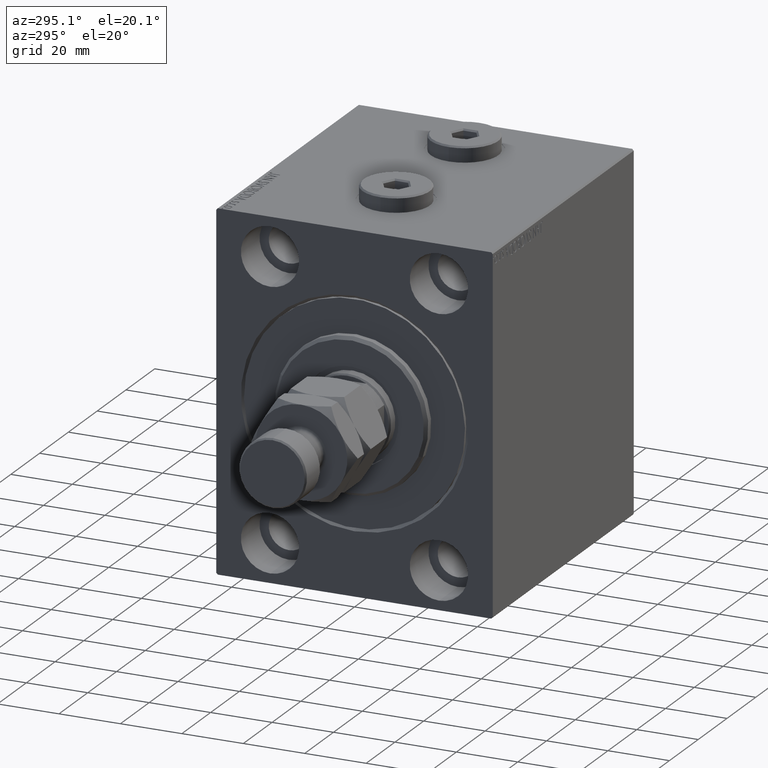
[diagram: clean part render]
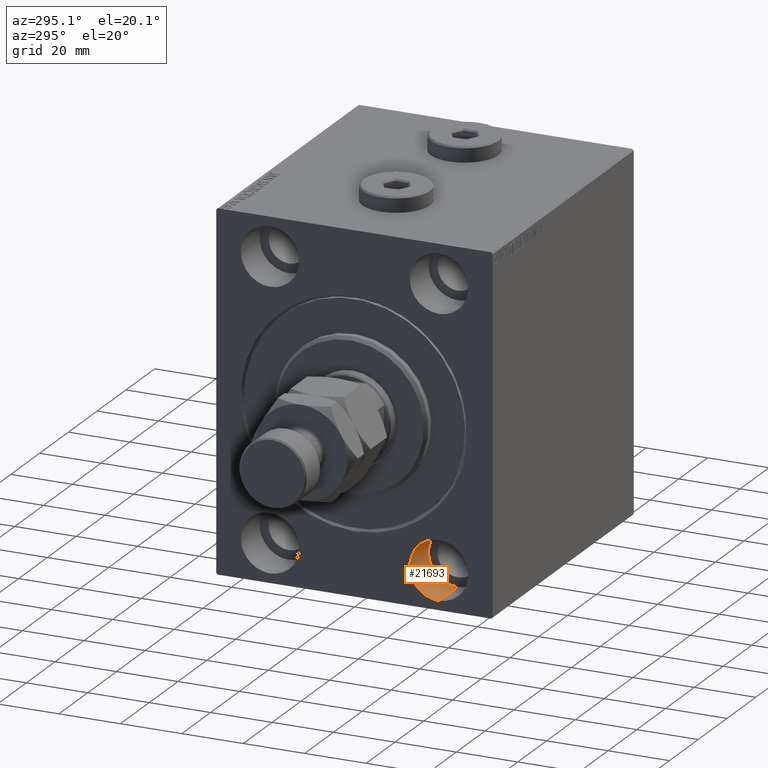
[diagram: same view with one face highlighted and labeled with its STEP entity id]
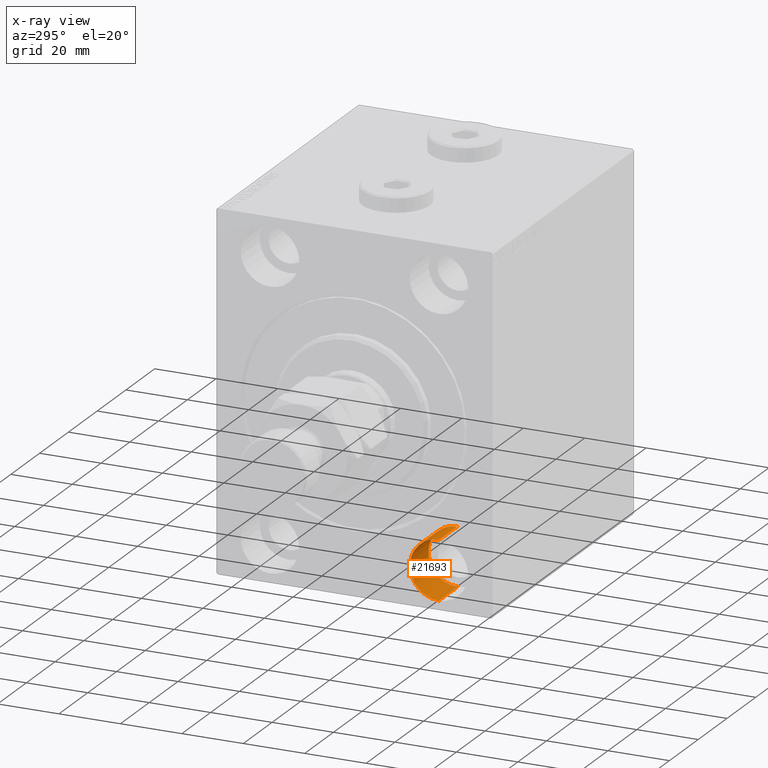
[diagram: x-ray of the same camera — body ghosted, the highlighted face saturated]
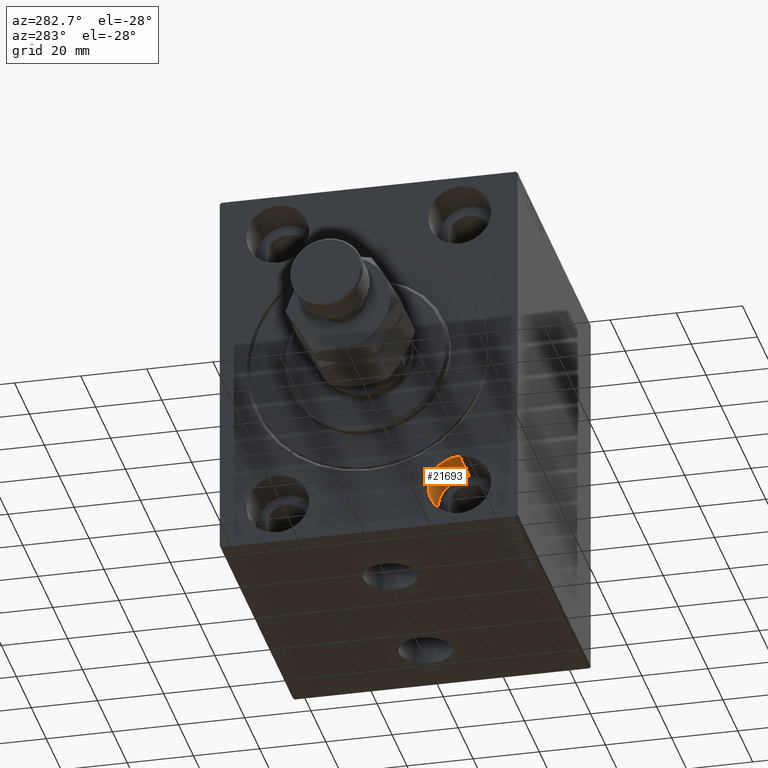
[diagram: same view with one face highlighted and labeled with its STEP entity id]
A machine part, auxiliary view. The second image highlights one B-rep face of the part: STEP entity #21693.
The next image is the same camera in x-ray: the body ghosted, the highlighted face saturated — about 0% of this face is hidden behind the body in this view.
A second angle (auxiliary view) of the same face is appended — the face is thin or edge-on in the first view.
In plain terms, the highlighted cylindrical surface (edge-blend (fillet) strip) has radius 9.5 mm, axis along (-1, -0, -0).
Its self-contained STEP definition (entity closure, byte-faithful):
#108 = DIRECTION ( 'NONE',  ( -1.000000000000000000, 0.000000000000000000, 0.000000000000000000 ) ) ;
#219 = LINE ( 'NONE', #18669, #29843 ) ;
#2959 = CARTESIAN_POINT ( 'NONE',  ( 0.000000000000000000, -27.50000000000000000, -44.99999999999998579 ) ) ;
#3745 = EDGE_CURVE ( 'NONE', #35159, #27742, #16390, .T. ) ;
#3888 = VECTOR ( 'NONE', #37948, 1000.000000000000000 ) ;
#4000 = DIRECTION ( 'NONE',  ( -1.000000000000000000, -0.000000000000000000, -0.000000000000000000 ) ) ;
#4632 = VERTEX_POINT ( 'NONE', #12322 ) ;
#6670 = AXIS2_PLACEMENT_3D ( 'NONE', #20337, #16318, #30761 ) ;
#6997 = ORIENTED_EDGE ( 'NONE', *, *, #20711, .T. ) ;
#9379 = CYLINDRICAL_SURFACE ( 'NONE', #18332, 9.500000000000001776 ) ;
#11753 = EDGE_CURVE ( 'NONE', #4632, #40062, #219, .T. ) ;
#12322 = CARTESIAN_POINT ( 'NONE',  ( 13.00000000000000000, -27.50000000000000000, -35.49999999999998579 ) ) ;
#15538 = CARTESIAN_POINT ( 'NONE',  ( 0.000000000000000000, -27.50000000000000000, -54.49999999999998579 ) ) ;
#16318 = DIRECTION ( 'NONE',  ( -1.000000000000000000, 0.000000000000000000, 0.000000000000000000 ) ) ;
#16390 = LINE ( 'NONE', #26809, #3888 ) ;
#18332 = AXIS2_PLACEMENT_3D ( 'NONE', #34017, #23834, #38280 ) ;
#18669 = CARTESIAN_POINT ( 'NONE',  ( 13.00000000000000000, -27.50000000000000000, -35.49999999999998579 ) ) ;
#19099 = AXIS2_PLACEMENT_3D ( 'NONE', #2959, #108, #46491 ) ;
#20337 = CARTESIAN_POINT ( 'NONE',  ( 13.00000000000000000, -27.50000000000000000, -44.99999999999998579 ) ) ;
#20605 = CIRCLE ( 'NONE', #19099, 9.500000000000001776 ) ;
#20711 = EDGE_CURVE ( 'NONE', #40062, #27742, #20605, .T. ) ;
#21693 = ADVANCED_FACE ( 'NONE', ( #41824 ), #9379, .F. ) ;
#23341 = ORIENTED_EDGE ( 'NONE', *, *, #39588, .F. ) ;
#23834 = DIRECTION ( 'NONE',  ( -1.000000000000000000, -0.000000000000000000, -0.000000000000000000 ) ) ;
#25557 = CIRCLE ( 'NONE', #6670, 9.500000000000001776 ) ;
#26809 = CARTESIAN_POINT ( 'NONE',  ( 13.00000000000000000, -27.50000000000000000, -54.49999999999998579 ) ) ;
#27742 = VERTEX_POINT ( 'NONE', #15538 ) ;
#29608 = EDGE_LOOP ( 'NONE', ( #33272, #23341, #41922, #6997 ) ) ;
#29843 = VECTOR ( 'NONE', #4000, 1000.000000000000000 ) ;
#30761 = DIRECTION ( 'NONE',  ( 0.000000000000000000, 0.000000000000000000, 1.000000000000000000 ) ) ;
#33272 = ORIENTED_EDGE ( 'NONE', *, *, #3745, .F. ) ;
#33691 = CARTESIAN_POINT ( 'NONE',  ( 13.00000000000000000, -27.50000000000000000, -54.49999999999998579 ) ) ;
#34017 = CARTESIAN_POINT ( 'NONE',  ( 13.00000000000000000, -27.50000000000000000, -44.99999999999998579 ) ) ;
#35159 = VERTEX_POINT ( 'NONE', #33691 ) ;
#37948 = DIRECTION ( 'NONE',  ( -1.000000000000000000, -0.000000000000000000, -0.000000000000000000 ) ) ;
#38280 = DIRECTION ( 'NONE',  ( 0.000000000000000000, 0.000000000000000000, 1.000000000000000000 ) ) ;
#39588 = EDGE_CURVE ( 'NONE', #4632, #35159, #25557, .T. ) ;
#40062 = VERTEX_POINT ( 'NONE', #43672 ) ;
#41824 = FACE_OUTER_BOUND ( 'NONE', #29608, .T. ) ;
#41922 = ORIENTED_EDGE ( 'NONE', *, *, #11753, .T. ) ;
#43672 = CARTESIAN_POINT ( 'NONE',  ( 0.000000000000000000, -27.50000000000000000, -35.49999999999998579 ) ) ;
#46491 = DIRECTION ( 'NONE',  ( 0.000000000000000000, 0.000000000000000000, 1.000000000000000000 ) ) ;